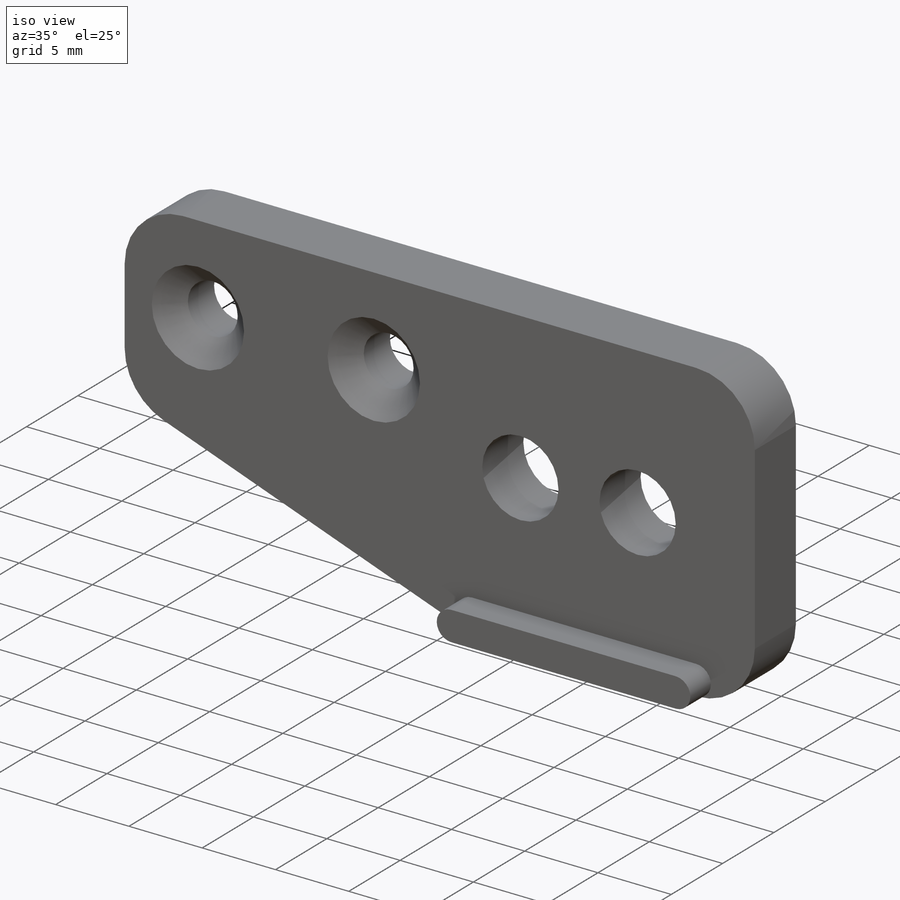
[diagram: iso view]
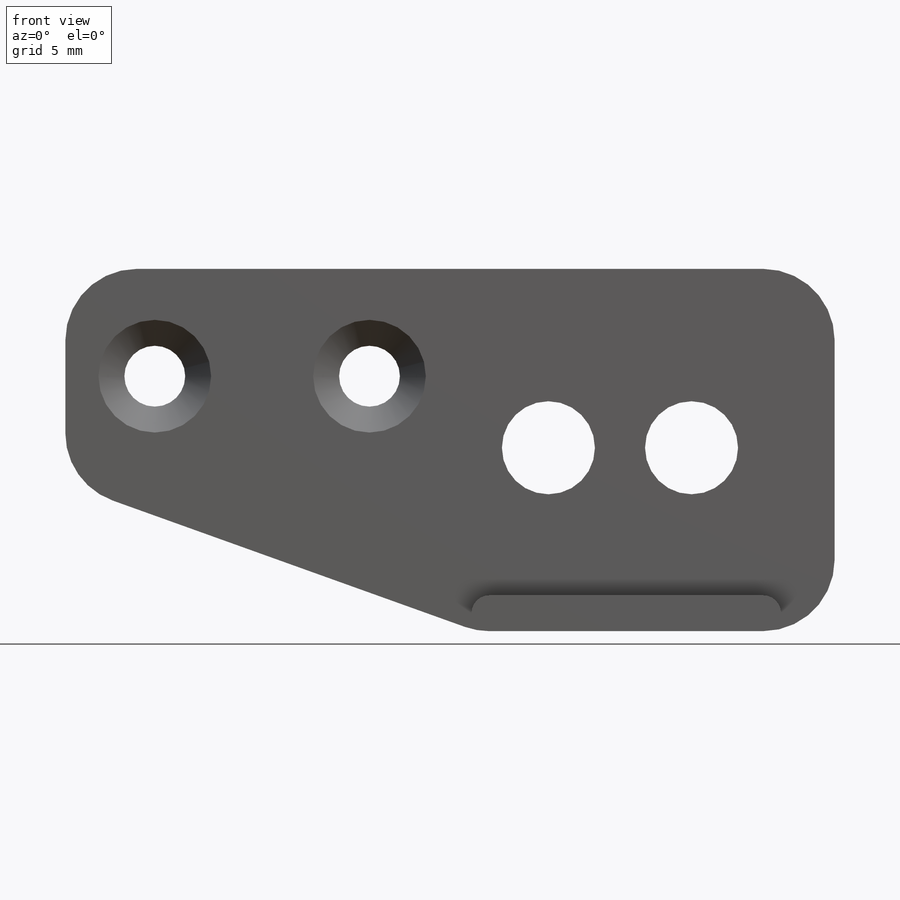
[diagram: front view]
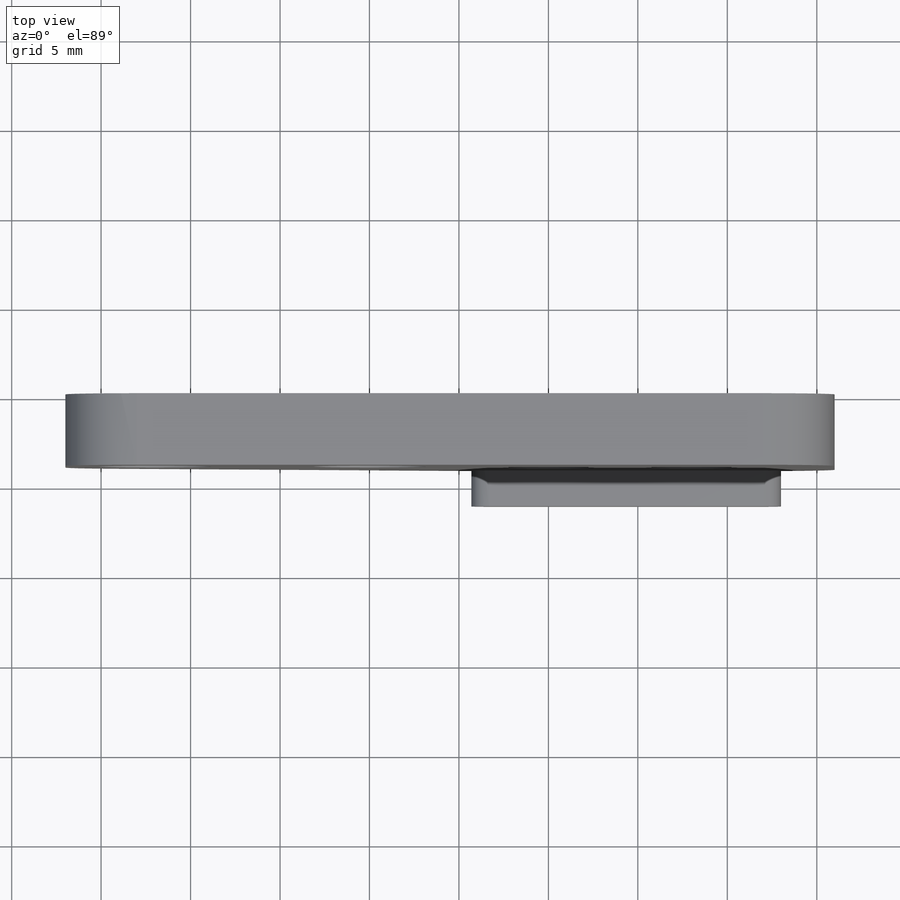
[diagram: top view]
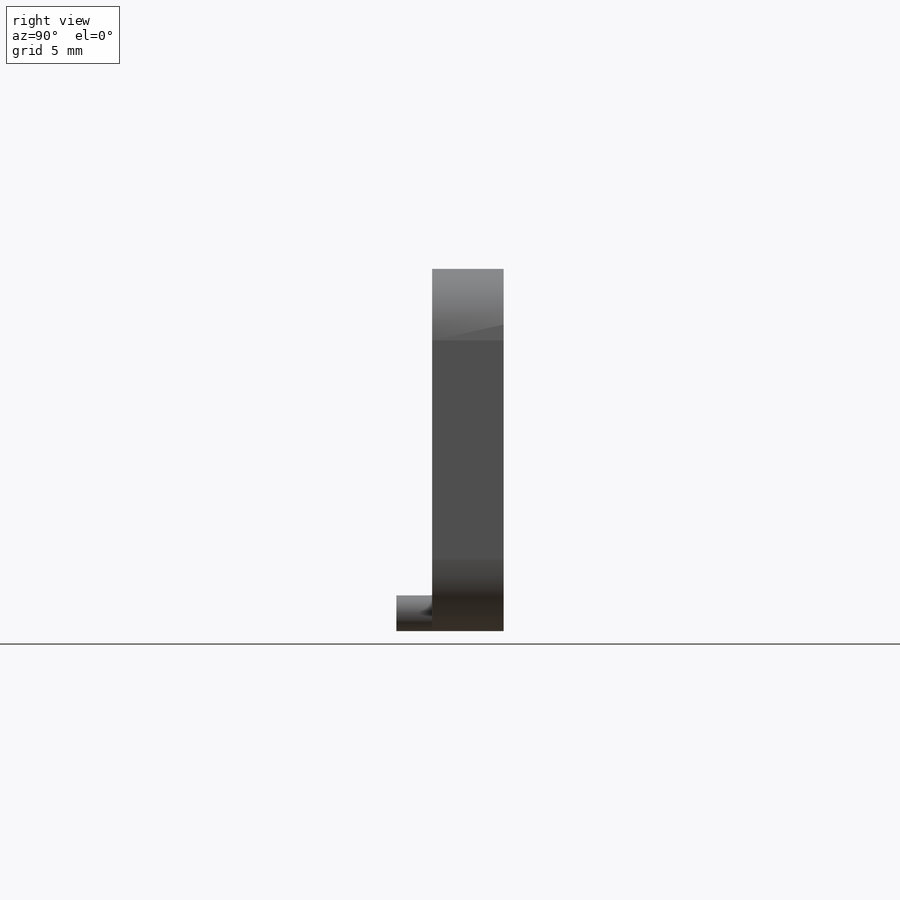
[diagram: right view]
SOLIDWORKS PART (.sldprt)
format: sldprt  version: not decoded by parser v0  size: 210,944 bytes
history: native  units: mm
features: sketch x4, extrude x2, material x1, hole x1, fillet x1 (+11 scaffold rows collapsed)
feature tree (20):
  scaffold x11  (default folders/planes/origin — collapsed)
  material  "Material <not specified>"
  sketch  "Sketch1"  dims[c1.D1=5.2mm c1.D5=3.0mm c1.D13=4.0mm c1.D11=4.0mm c1.D17=4.0mm c1.D2=10.0mm c1.D3=12.0mm c1.D4=8.0mm c1.D6=10.0mm c1.D7=6.0mm c1.D8=8.25mm c1.D9=8.0mm c1.D10=12.0mm c2.D11=4.0mm c2.D12=5.0mm c2.D2=4.0mm c2.D7=10.25mm c2.D10=5.0mm c2.D14=6.0mm c2.D15=4.0mm c2.D16=6.0mm]
  extrude  "Boss-Extrude1"  Depth=4mm
  sketch  "Sketch2"  dims[D1=8.25mm D2=4.0mm]
  extrude  "Boss-Extrude2"  Depth=2mm
  hole  "CSK for M3 Flat Head Machine Screw1"  Diameter=3.4mm Depth=4mm
  sketch  "Sketch4"
  sketch  "Sketch3"  dims[hole-wizard template sketch: 55 standard entries collapsed; hole parameters kept: c17.Thru Hole Depth=4.0mm c17.Near C'Sink Dia.=6.3mm c17.D4=~3.666174mm c17.Near C'Sink Angle=90.0deg]
  fillet  "Fillet1"  Radius=1mm
decode coverage: 7 of 8 modeling features carry decoded parameters
note: ~ marks probable driven/reference dimensions
note: suppression state not decoded; provenance and decode notes live in map.json
